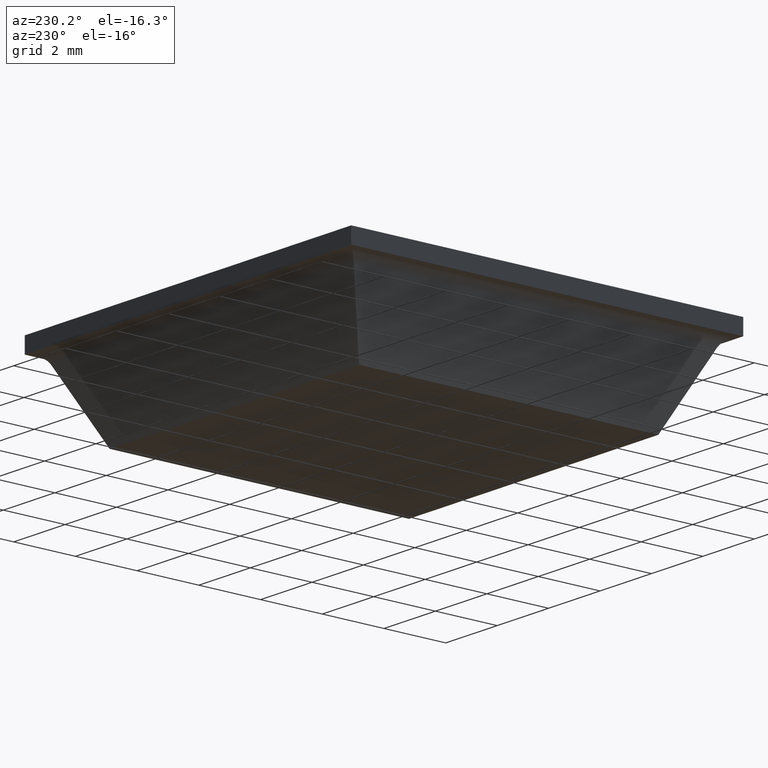
[diagram: clean part render]
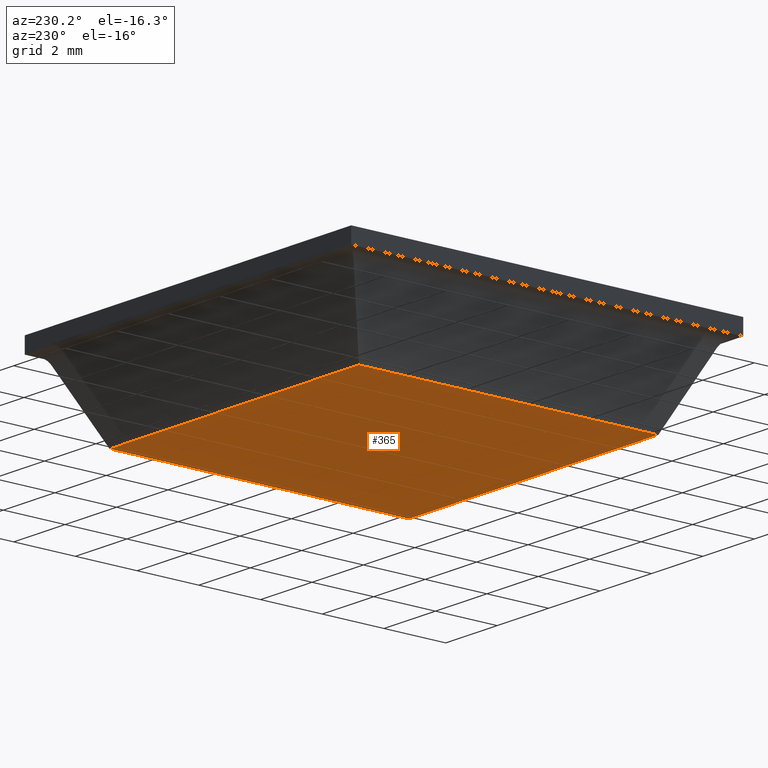
[diagram: same view with one face highlighted and labeled with its STEP entity id]
A machine part, auxiliary view. The second image highlights one B-rep face of the part: STEP entity #365.
In plain terms, the highlighted face is a freeform B-spline surface patch.
Its self-contained STEP definition (entity closure, byte-faithful):
#229=CARTESIAN_POINT('',(4.850000000000001,-4.850000000000001,0.0));
#230=VERTEX_POINT('',#229);
#237=CARTESIAN_POINT('',(-4.850000000000001,-4.850000000000001,0.0));
#238=VERTEX_POINT('',#237);
#244=CARTESIAN_POINT('',(4.850000000000001,-4.850000000000001,0.0));
#245=CARTESIAN_POINT('',(-4.850000000000001,-4.850000000000001,0.0));
#246=QUASI_UNIFORM_CURVE('',1,(#244,#245),.UNSPECIFIED.,.F.,.U.);
#247=EDGE_CURVE('',#230,#238,#246,.T.);
#257=CARTESIAN_POINT('',(4.850000000000001,4.850000000000001,0.0));
#258=VERTEX_POINT('',#257);
#266=CARTESIAN_POINT('',(4.850000000000001,4.850000000000001,0.0));
#267=CARTESIAN_POINT('',(4.850000000000001,-4.850000000000001,0.0));
#268=QUASI_UNIFORM_CURVE('',1,(#266,#267),.UNSPECIFIED.,.F.,.U.);
#269=EDGE_CURVE('',#258,#230,#268,.T.);
#279=CARTESIAN_POINT('',(-4.850000000000001,4.850000000000001,0.0));
#280=VERTEX_POINT('',#279);
#288=CARTESIAN_POINT('',(-4.850000000000001,4.850000000000001,0.0));
#289=CARTESIAN_POINT('',(4.850000000000001,4.850000000000001,0.0));
#290=QUASI_UNIFORM_CURVE('',1,(#288,#289),.UNSPECIFIED.,.F.,.U.);
#291=EDGE_CURVE('',#280,#258,#290,.T.);
#304=CARTESIAN_POINT('',(-4.850000000000001,-4.850000000000001,0.0));
#305=CARTESIAN_POINT('',(-4.850000000000001,4.850000000000001,0.0));
#306=QUASI_UNIFORM_CURVE('',1,(#304,#305),.UNSPECIFIED.,.F.,.U.);
#307=EDGE_CURVE('',#238,#280,#306,.T.);
#354=CARTESIAN_POINT('',(-5.334514890142859,-5.334514890142859,0.0));
#355=CARTESIAN_POINT('',(5.334515237041892,-5.334514890142859,0.0));
#356=CARTESIAN_POINT('',(-5.334514890142858,5.334515237041892,0.0));
#357=CARTESIAN_POINT('',(5.334515237041892,5.334515237041892,0.0));
#358=B_SPLINE_SURFACE_WITH_KNOTS('',1,1,((#354,#356),(#355,#357)),.UNSPECIFIED.,.F.,.F.,.U.,(2,2),(2,2),(0.0,10.669030127184749),(0.0,10.669030127184749),.UNSPECIFIED.);
#359=ORIENTED_EDGE('',*,*,#247,.T.);
#360=ORIENTED_EDGE('',*,*,#307,.T.);
#361=ORIENTED_EDGE('',*,*,#291,.T.);
#362=ORIENTED_EDGE('',*,*,#269,.T.);
#363=EDGE_LOOP('',(#359,#360,#361,#362));
#364=FACE_OUTER_BOUND('',#363,.T.);
#365=ADVANCED_FACE('',(#364),#358,.F.);